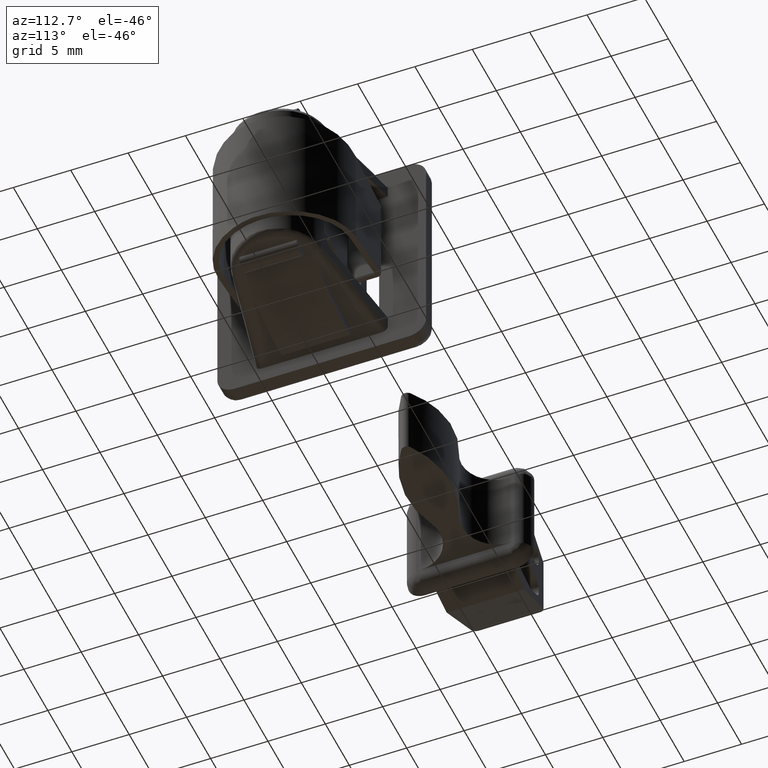
[diagram: clean part render]
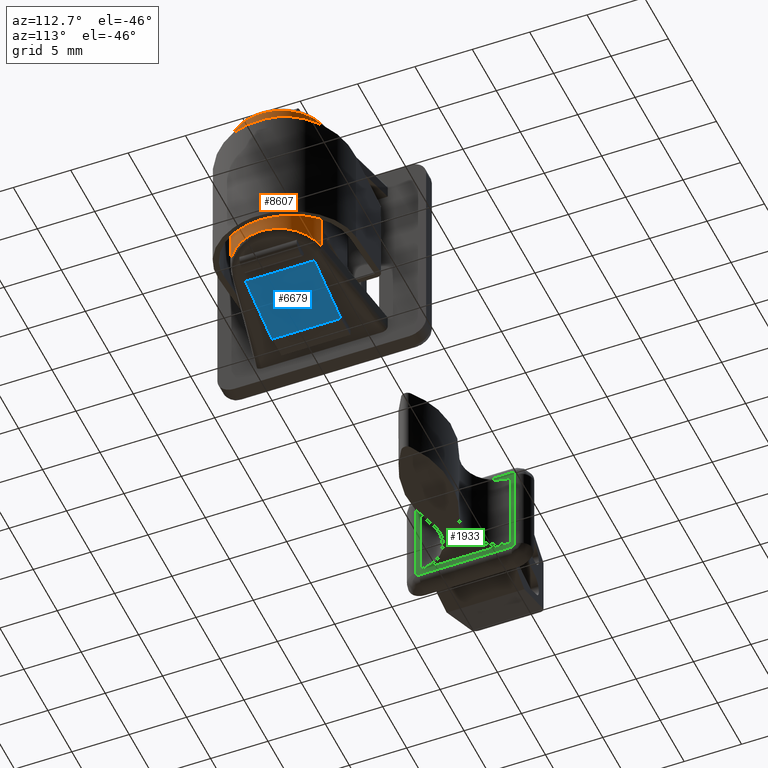
[diagram: same view with three faces highlighted in distinct colors, each labeled with its STEP entity id]
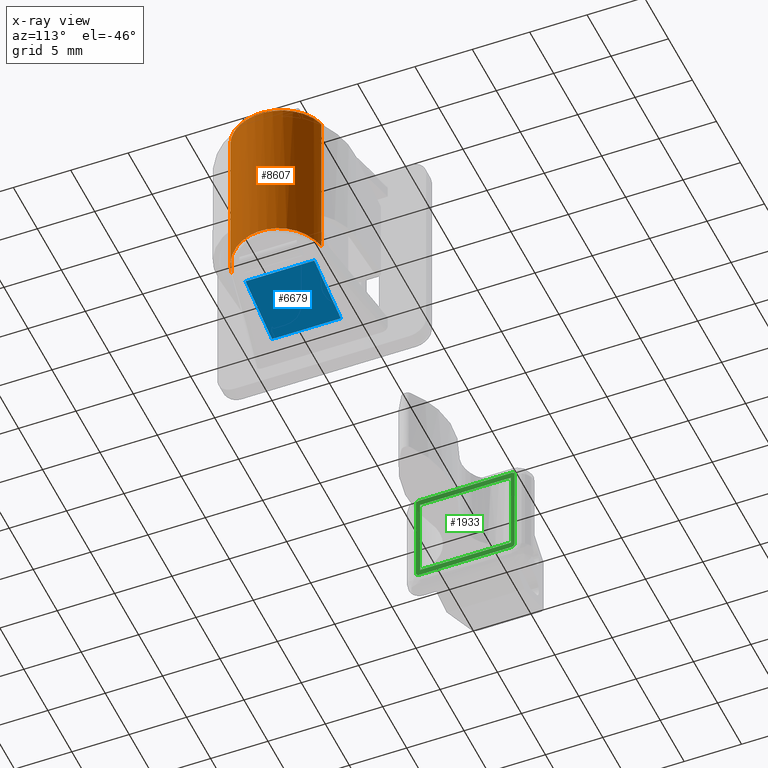
[diagram: x-ray of the same camera — body ghosted, the three highlighted faces saturated]
A machine part, auxiliary view with three faces highlighted in distinct colors.
The next image is the same camera in x-ray (body ghosted, the three faces saturated) — at least one of them is partly hidden behind the body in this view.
Their STEP definitions:

[orange] entity #8607 — the highlighted face is a freeform B-spline surface patch.
#4795=CARTESIAN_POINT('',(11.064309641257140,3.926297547143600,-7.075413422267475));
#4796=VERTEX_POINT('',#4795);
#5652=CARTESIAN_POINT('',(11.047156694788740,-3.929597809131050,-7.076996171099360));
#5653=VERTEX_POINT('',#5652);
#5683=CARTESIAN_POINT('',(11.047156694788740,-3.929597809131050,-7.076996171099360));
#5684=CARTESIAN_POINT('',(14.292764899494305,-3.312482021741591,-6.797469026865286));
#5685=CARTESIAN_POINT('',(14.299978465135361,-0.008733774981838,-6.796803411624595));
#5686=CARTESIAN_POINT('',(14.307192030776424,3.295014471777916,-6.796137796383905));
#5687=CARTESIAN_POINT('',(11.064309641257140,3.926297547143600,-7.075413422267475));
#5695=(BOUNDED_CURVE()B_SPLINE_CURVE(2,(#5683,#5684,#5685,#5686,#5687),.UNSPECIFIED.,.F.,.U.)B_SPLINE_CURVE_WITH_KNOTS((3,2,3),(0.0,0.500000000000000,1.0),.UNSPECIFIED.)CURVE()GEOMETRIC_REPRESENTATION_ITEM()RATIONAL_B_SPLINE_CURVE((1.0,0.771017750242276,1.0,0.771017750242276,1.0))REPRESENTATION_ITEM(''));
#5696=EDGE_CURVE('',#5653,#4796,#5695,.T.);
#5745=CARTESIAN_POINT('',(11.047156694788740,-3.929597809131050,7.076996453783846));
#5746=VERTEX_POINT('',#5745);
#6148=CARTESIAN_POINT('',(11.064309641257140,3.926297547143600,7.075459686153450));
#6149=VERTEX_POINT('',#6148);
#6179=CARTESIAN_POINT('',(11.064309641257140,3.926297547143600,7.075459686153450));
#6180=CARTESIAN_POINT('',(14.307192030776420,3.295014471777912,6.796180176262423));
#6181=CARTESIAN_POINT('',(14.299978465135361,-0.008733774981841,6.796826454392967));
#6182=CARTESIAN_POINT('',(14.292764899494312,-3.312482021741594,6.797472732523510));
#6183=CARTESIAN_POINT('',(11.047156694788740,-3.929597809131050,7.076996453783846));
#6191=(BOUNDED_CURVE()B_SPLINE_CURVE(2,(#6179,#6180,#6181,#6182,#6183),.UNSPECIFIED.,.F.,.U.)B_SPLINE_CURVE_WITH_KNOTS((3,2,3),(0.0,0.500000000000000,1.0),.UNSPECIFIED.)CURVE()GEOMETRIC_REPRESENTATION_ITEM()RATIONAL_B_SPLINE_CURVE((1.0,0.771017750242276,1.0,0.771017750242276,1.0))REPRESENTATION_ITEM(''));
#6192=EDGE_CURVE('',#6149,#5746,#6191,.T.);
#8575=CARTESIAN_POINT('',(10.907402490164690,3.953611973517108,-7.430845986721440));
#8576=CARTESIAN_POINT('',(10.907402490164690,3.953611973517108,7.439692514796478));
#8577=CARTESIAN_POINT('',(14.374627134745538,3.420923762361837,-7.430845986721440));
#8578=CARTESIAN_POINT('',(14.374627134745538,3.420923762361837,7.439692514796479));
#8579=CARTESIAN_POINT('',(14.299059775509900,-0.086168058579087,-7.430845986721440));
#8580=CARTESIAN_POINT('',(14.299059775509900,-0.086168058579087,7.439692514796478));
#8581=CARTESIAN_POINT('',(14.223492416274254,-3.593259879520013,-7.430845986721440));
#8582=CARTESIAN_POINT('',(14.223492416274254,-3.593259879520013,7.439692514796479));
#8583=CARTESIAN_POINT('',(10.736540732379110,-3.976106350671754,-7.430845986721440));
#8584=CARTESIAN_POINT('',(10.736540732379110,-3.976106350671754,7.439692514796478));
#8592=(BOUNDED_SURFACE()B_SPLINE_SURFACE(1,2,((#8575,#8577,#8579,#8581,#8583),(#8576,#8578,#8580,#8582,#8584)),.UNSPECIFIED.,.F.,.F.,.U.)B_SPLINE_SURFACE_WITH_KNOTS((2,2),(3,2,3),(0.0,14.870538501517920),(0.0,6.021973582608925,12.043947165217849),.UNSPECIFIED.)GEOMETRIC_REPRESENTATION_ITEM()RATIONAL_B_SPLINE_SURFACE(((1.0,0.751839807478977,1.0,0.751839807478977,1.0),(1.0,0.751839807478977,1.0,0.751839807478977,1.0)))REPRESENTATION_ITEM('')SURFACE());
#8593=CARTESIAN_POINT('',(11.064309641257140,3.926297547143600,-7.075413422267475));
#8594=CARTESIAN_POINT('',(11.064309641257140,3.926297547143600,7.075459686153450));
#8595=QUASI_UNIFORM_CURVE('',1,(#8593,#8594),.UNSPECIFIED.,.F.,.U.);
#8596=EDGE_CURVE('',#4796,#6149,#8595,.T.);
#8597=ORIENTED_EDGE('',*,*,#8596,.T.);
#8598=ORIENTED_EDGE('',*,*,#6192,.T.);
#8599=CARTESIAN_POINT('',(11.047156694788740,-3.929597809131050,-7.076996171099360));
#8600=CARTESIAN_POINT('',(11.047156694788740,-3.929597809131050,7.076996453783846));
#8601=QUASI_UNIFORM_CURVE('',1,(#8599,#8600),.UNSPECIFIED.,.F.,.U.);
#8602=EDGE_CURVE('',#5653,#5746,#8601,.T.);
#8603=ORIENTED_EDGE('',*,*,#8602,.F.);
#8604=ORIENTED_EDGE('',*,*,#5696,.T.);
#8605=EDGE_LOOP('',(#8597,#8598,#8603,#8604));
#8606=FACE_OUTER_BOUND('',#8605,.T.);
#8607=ADVANCED_FACE('',(#8606),#8592,.T.);

[blue] entity #6679 — the highlighted face is a freeform B-spline surface patch.
#6602=CARTESIAN_POINT('',(10.322143000000100,3.000000000000115,-7.641521000000000));
#6603=VERTEX_POINT('',#6602);
#6609=CARTESIAN_POINT('',(4.799987000000100,3.000000000000115,-9.050002999999999));
#6610=VERTEX_POINT('',#6609);
#6611=CARTESIAN_POINT('',(4.799987000000100,3.000000000000115,-9.050002999999999));
#6612=CARTESIAN_POINT('',(10.322143000000100,3.000000000000115,-7.641521000000000));
#6613=QUASI_UNIFORM_CURVE('',1,(#6611,#6612),.UNSPECIFIED.,.F.,.U.);
#6614=EDGE_CURVE('',#6610,#6603,#6613,.T.);
#6638=CARTESIAN_POINT('',(4.799987000000100,-3.0,-9.050002999999999));
#6639=VERTEX_POINT('',#6638);
#6645=CARTESIAN_POINT('',(10.322150250581499,-3.0,-7.641519150665539));
#6646=VERTEX_POINT('',#6645);
#6647=CARTESIAN_POINT('',(4.799987000000100,-3.0,-9.050002999999999));
#6648=CARTESIAN_POINT('',(10.322150250581499,-3.0,-7.641519150665539));
#6649=QUASI_UNIFORM_CURVE('',1,(#6647,#6648),.UNSPECIFIED.,.F.,.U.);
#6650=EDGE_CURVE('',#6639,#6646,#6649,.T.);
#6660=CARTESIAN_POINT('',(4.524154748984114,-3.299699988370842,-9.120356818431697));
#6661=CARTESIAN_POINT('',(10.597982452225500,-3.299699988370842,-7.571165344826654));
#6662=CARTESIAN_POINT('',(4.524154748984114,3.299700149303499,-9.120356818431697));
#6663=CARTESIAN_POINT('',(10.597982452225500,3.299700149303499,-7.571165344826654));
#6664=B_SPLINE_SURFACE_WITH_KNOTS('',1,1,((#6660,#6662),(#6661,#6663)),.UNSPECIFIED.,.F.,.F.,.U.,(2,2),(2,2),(0.0,6.268283432531832),(0.0,6.599400137674341),.UNSPECIFIED.);
#6665=ORIENTED_EDGE('',*,*,#6614,.T.);
#6666=CARTESIAN_POINT('',(10.322150250581499,-3.0,-7.641519150665539));
#6667=CARTESIAN_POINT('',(10.322143000000100,3.000000000000115,-7.641521000000000));
#6668=QUASI_UNIFORM_CURVE('',1,(#6666,#6667),.UNSPECIFIED.,.F.,.U.);
#6669=EDGE_CURVE('',#6646,#6603,#6668,.T.);
#6670=ORIENTED_EDGE('',*,*,#6669,.F.);
#6671=ORIENTED_EDGE('',*,*,#6650,.F.);
#6672=CARTESIAN_POINT('',(4.799987000000100,-3.0,-9.050002999999999));
#6673=CARTESIAN_POINT('',(4.799987000000100,3.000000000000115,-9.050002999999999));
#6674=QUASI_UNIFORM_CURVE('',1,(#6672,#6673),.UNSPECIFIED.,.F.,.U.);
#6675=EDGE_CURVE('',#6639,#6610,#6674,.T.);
#6676=ORIENTED_EDGE('',*,*,#6675,.T.);
#6677=EDGE_LOOP('',(#6665,#6670,#6671,#6676));
#6678=FACE_OUTER_BOUND('',#6677,.T.);
#6679=ADVANCED_FACE('',(#6678),#6664,.F.);

[green] entity #1933 — the highlighted face is a freeform B-spline surface patch.
#1234=CARTESIAN_POINT('',(-28.318453989830900,4.000003000000000,4.300003000000000));
#1235=VERTEX_POINT('',#1234);
#1257=CARTESIAN_POINT('',(-28.318453989830900,-4.000004000000000,4.300003000000000));
#1258=VERTEX_POINT('',#1257);
#1271=CARTESIAN_POINT('',(-28.318453989830900,4.000003000000000,4.300003000000000));
#1272=CARTESIAN_POINT('',(-28.318453989830900,-4.000004000000000,4.300003000000000));
#1273=QUASI_UNIFORM_CURVE('',1,(#1271,#1272),.UNSPECIFIED.,.F.,.U.);
#1274=EDGE_CURVE('',#1235,#1258,#1273,.T.);
#1324=CARTESIAN_POINT('',(-28.318453989830900,-4.300004000000000,4.000003000000000));
#1325=VERTEX_POINT('',#1324);
#1337=CARTESIAN_POINT('',(-28.318453989830900,-4.000004000000000,4.300003000000000));
#1338=CARTESIAN_POINT('',(-28.318453989830889,-4.054029771224807,4.300148839399903));
#1339=CARTESIAN_POINT('',(-28.318453989830910,-4.147143078507940,4.274122154510843));
#1340=CARTESIAN_POINT('',(-28.318453989830910,-4.236102340011056,4.193443252471568));
#1341=CARTESIAN_POINT('',(-28.318453989830921,-4.287281331059861,4.103057670041053));
#1342=CARTESIAN_POINT('',(-28.318453989830910,-4.300047658783706,4.039279600740490));
#1343=CARTESIAN_POINT('',(-28.318453989830900,-4.300004000000000,4.000003000000000));
#1344=B_SPLINE_CURVE_WITH_KNOTS('',3,(#1337,#1338,#1339,#1340,#1341,#1342,#1343),.UNSPECIFIED.,.F.,.U.,(4,1,1,1,4),(0.000000091855904,0.162011338866362,0.279819294376587,0.353464646708266,0.471286164992342),.UNSPECIFIED.);
#1345=EDGE_CURVE('',#1258,#1325,#1344,.T.);
#1407=CARTESIAN_POINT('',(-28.318453989830900,4.300003000000000,4.000003000000000));
#1408=VERTEX_POINT('',#1407);
#1437=CARTESIAN_POINT('',(-28.318453989830900,4.300003000000000,4.000003000000000));
#1438=CARTESIAN_POINT('',(-28.318453989830900,4.300149728392033,4.054029454770951));
#1439=CARTESIAN_POINT('',(-28.318453989830878,4.274119440985297,4.147141589817287));
#1440=CARTESIAN_POINT('',(-28.318453989830939,4.196806753236611,4.232392733200548));
#1441=CARTESIAN_POINT('',(-28.318453989830790,4.107946482857208,4.285637802115843));
#1442=CARTESIAN_POINT('',(-28.318453989830971,4.044198159160971,4.300076411507141));
#1443=CARTESIAN_POINT('',(-28.318453989830900,4.000003000000000,4.300003000000000));
#1444=B_SPLINE_CURVE_WITH_KNOTS('',3,(#1437,#1438,#1439,#1440,#1441,#1442,#1443),.UNSPECIFIED.,.F.,.U.,(4,1,1,1,4),(0.000000091856103,0.162011338866464,0.279819294376614,0.338734250091933,0.471286164992342),.UNSPECIFIED.);
#1445=EDGE_CURVE('',#1408,#1235,#1444,.T.);
#1466=CARTESIAN_POINT('',(-28.318453989830900,-4.300004000000000,-4.000003000000000));
#1467=VERTEX_POINT('',#1466);
#1479=CARTESIAN_POINT('',(-28.318453989830900,-4.300004000000000,4.000003000000000));
#1480=CARTESIAN_POINT('',(-28.318453989830900,-4.300004000000000,-4.000003000000000));
#1481=QUASI_UNIFORM_CURVE('',1,(#1479,#1480),.UNSPECIFIED.,.F.,.U.);
#1482=EDGE_CURVE('',#1325,#1467,#1481,.T.);
#1507=CARTESIAN_POINT('',(-28.318453989830900,4.300003000000000,-4.000003000000000));
#1508=VERTEX_POINT('',#1507);
#1529=CARTESIAN_POINT('',(-28.318453989830900,4.300003000000000,-4.000003000000000));
#1530=CARTESIAN_POINT('',(-28.318453989830900,4.300003000000000,4.000003000000000));
#1531=QUASI_UNIFORM_CURVE('',1,(#1529,#1530),.UNSPECIFIED.,.F.,.U.);
#1532=EDGE_CURVE('',#1508,#1408,#1531,.T.);
#1572=CARTESIAN_POINT('',(-28.318453989830900,-4.000004000000000,-4.300003000000000));
#1573=VERTEX_POINT('',#1572);
#1586=CARTESIAN_POINT('',(-28.318453989830900,-4.300004000000000,-4.000003000000000));
#1587=CARTESIAN_POINT('',(-28.318453989830921,-4.300076662647862,-4.044196381391520));
#1588=CARTESIAN_POINT('',(-28.318453989830900,-4.283420108444843,-4.117755037271913));
#1589=CARTESIAN_POINT('',(-28.318453989830932,-4.217289222020949,-4.216833235344375));
#1590=CARTESIAN_POINT('',(-28.318453989830889,-4.122714748795016,-4.283402111455977));
#1591=CARTESIAN_POINT('',(-28.318453989830910,-4.039276062701998,-4.300039051477119));
#1592=CARTESIAN_POINT('',(-28.318453989830900,-4.000004000000000,-4.300003000000000));
#1593=B_SPLINE_CURVE_WITH_KNOTS('',3,(#1586,#1587,#1588,#1589,#1590,#1591,#1592),.UNSPECIFIED.,.F.,.U.,(4,1,1,1,4),(0.000000091855992,0.132552006756380,0.220918439719580,0.353464646708210,0.471286164992346),.UNSPECIFIED.);
#1594=EDGE_CURVE('',#1467,#1573,#1593,.T.);
#1646=CARTESIAN_POINT('',(-28.318453989830900,4.000003000000000,-4.300003000000000));
#1647=VERTEX_POINT('',#1646);
#1676=CARTESIAN_POINT('',(-28.318453989830900,4.000003000000000,-4.300003000000000));
#1677=CARTESIAN_POINT('',(-28.318453989830900,4.054029454770951,-4.300149728392033));
#1678=CARTESIAN_POINT('',(-28.318453989830878,4.147141589817287,-4.274119440985297));
#1679=CARTESIAN_POINT('',(-28.318453989830939,4.232392733200548,-4.196806753236611));
#1680=CARTESIAN_POINT('',(-28.318453989830790,4.285637802115843,-4.107946482857208));
#1681=CARTESIAN_POINT('',(-28.318453989830971,4.300076411507141,-4.044198159160971));
#1682=CARTESIAN_POINT('',(-28.318453989830900,4.300003000000000,-4.000003000000000));
#1683=B_SPLINE_CURVE_WITH_KNOTS('',3,(#1676,#1677,#1678,#1679,#1680,#1681,#1682),.UNSPECIFIED.,.F.,.U.,(4,1,1,1,4),(0.000000091856103,0.162011338866464,0.279819294376614,0.338734250091933,0.471286164992342),.UNSPECIFIED.);
#1684=EDGE_CURVE('',#1647,#1508,#1683,.T.);
#1710=CARTESIAN_POINT('',(-28.318453989830900,-4.000004000000000,-4.300003000000000));
#1711=CARTESIAN_POINT('',(-28.318453989830900,4.000003000000000,-4.300003000000000));
#1712=QUASI_UNIFORM_CURVE('',1,(#1710,#1711),.UNSPECIFIED.,.F.,.U.);
#1713=EDGE_CURVE('',#1573,#1647,#1712,.T.);
#1723=CARTESIAN_POINT('',(-28.318446989831049,3.951482356489900,-3.750000000000000));
#1724=VERTEX_POINT('',#1723);
#1786=CARTESIAN_POINT('',(-28.318446989831049,-3.951499356489865,-3.750000000000000));
#1787=VERTEX_POINT('',#1786);
#1803=CARTESIAN_POINT('',(-28.318446989831049,-3.951499356489865,-3.750000000000000));
#1804=CARTESIAN_POINT('',(-28.318446989831049,3.951482356489900,-3.750000000000000));
#1805=QUASI_UNIFORM_CURVE('',1,(#1803,#1804),.UNSPECIFIED.,.F.,.U.);
#1806=EDGE_CURVE('',#1787,#1724,#1805,.T.);
#1818=CARTESIAN_POINT('',(-28.318446989831049,3.951482356489900,3.750000000000000));
#1819=VERTEX_POINT('',#1818);
#1835=CARTESIAN_POINT('',(-28.318446989831049,-3.951499356489865,3.750000000000000));
#1836=VERTEX_POINT('',#1835);
#1837=CARTESIAN_POINT('',(-28.318446989831049,-3.951499356489865,3.750000000000000));
#1838=CARTESIAN_POINT('',(-28.318446989831049,3.951482356489900,3.750000000000000));
#1839=QUASI_UNIFORM_CURVE('',1,(#1837,#1838),.UNSPECIFIED.,.F.,.U.);
#1840=EDGE_CURVE('',#1836,#1819,#1839,.T.);
#1904=CARTESIAN_POINT('',(-28.318453989830900,-4.729574332981517,4.729573363762223));
#1905=CARTESIAN_POINT('',(-28.318453989830900,-4.729574332981517,-4.729573517542315));
#1906=CARTESIAN_POINT('',(-28.318453989830900,4.729573563651681,4.729573363762223));
#1907=CARTESIAN_POINT('',(-28.318453989830900,4.729573563651681,-4.729573517542315));
#1908=B_SPLINE_SURFACE_WITH_KNOTS('',1,1,((#1904,#1906),(#1905,#1907)),.UNSPECIFIED.,.F.,.F.,.U.,(2,2),(2,2),(0.0,9.459146881304537),(0.0,9.459147896633198),.UNSPECIFIED.);
#1909=ORIENTED_EDGE('',*,*,#1445,.T.);
#1910=ORIENTED_EDGE('',*,*,#1274,.T.);
#1911=ORIENTED_EDGE('',*,*,#1345,.T.);
#1912=ORIENTED_EDGE('',*,*,#1482,.T.);
#1913=ORIENTED_EDGE('',*,*,#1594,.T.);
#1914=ORIENTED_EDGE('',*,*,#1713,.T.);
#1915=ORIENTED_EDGE('',*,*,#1684,.T.);
#1916=ORIENTED_EDGE('',*,*,#1532,.T.);
#1917=EDGE_LOOP('',(#1909,#1910,#1911,#1912,#1913,#1914,#1915,#1916));
#1918=FACE_OUTER_BOUND('',#1917,.T.);
#1919=CARTESIAN_POINT('',(-28.318446989831049,3.951482356489900,3.750000000000000));
#1920=CARTESIAN_POINT('',(-28.318446989831049,3.951482356489900,-3.750000000000000));
#1921=QUASI_UNIFORM_CURVE('',1,(#1919,#1920),.UNSPECIFIED.,.F.,.U.);
#1922=EDGE_CURVE('',#1819,#1724,#1921,.T.);
#1923=ORIENTED_EDGE('',*,*,#1922,.T.);
#1924=ORIENTED_EDGE('',*,*,#1806,.F.);
#1925=CARTESIAN_POINT('',(-28.318446989831049,-3.951499356489865,3.750000000000000));
#1926=CARTESIAN_POINT('',(-28.318446989831049,-3.951499356489865,-3.750000000000000));
#1927=QUASI_UNIFORM_CURVE('',1,(#1925,#1926),.UNSPECIFIED.,.F.,.U.);
#1928=EDGE_CURVE('',#1836,#1787,#1927,.T.);
#1929=ORIENTED_EDGE('',*,*,#1928,.F.);
#1930=ORIENTED_EDGE('',*,*,#1840,.T.);
#1931=EDGE_LOOP('',(#1923,#1924,#1929,#1930));
#1932=FACE_BOUND('',#1931,.T.);
#1933=ADVANCED_FACE('',(#1918,#1932),#1908,.T.);